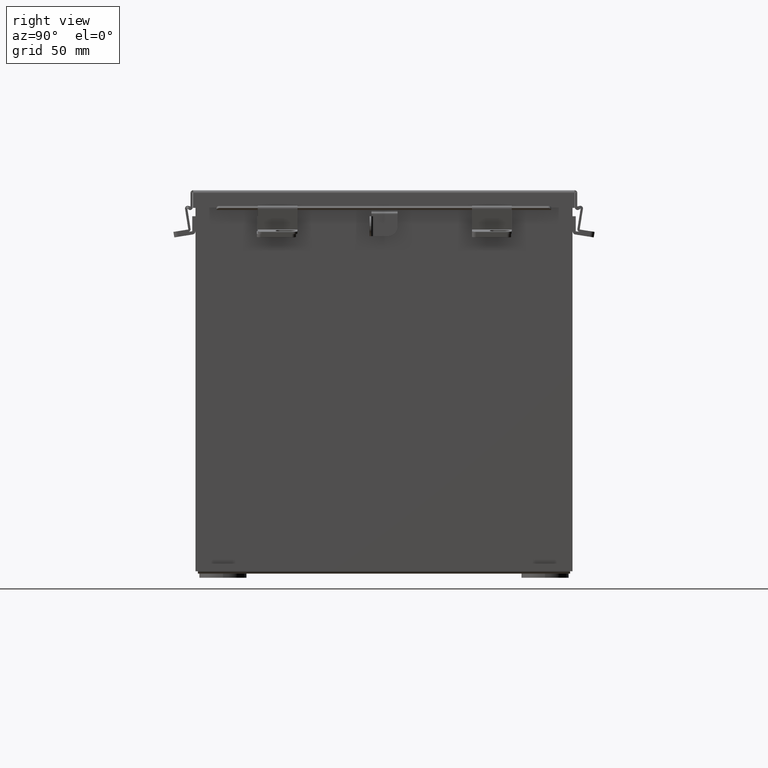
[diagram: clean part render]
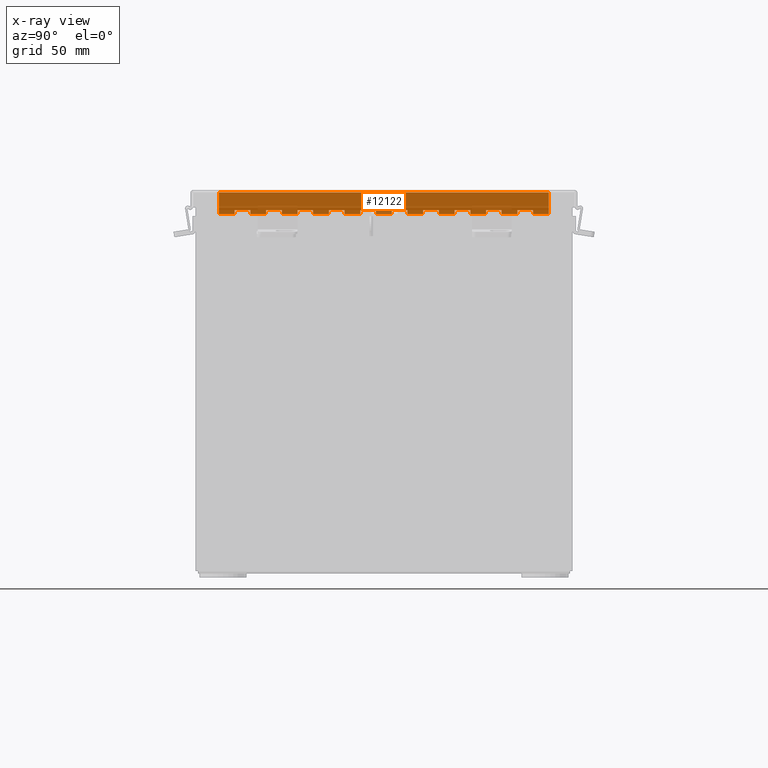
[diagram: x-ray — body ghosted, one internal face saturated and labeled with its STEP entity id]
A machine part, right view, then the same camera in x-ray: the body is ghosted and one INTERNAL B-rep face — a face not visible from any outside direction — is saturated and labeled: STEP entity #12122.
In plain terms, the highlighted planar face has unit normal (1, -0, 0).
Its self-contained STEP definition (entity closure, byte-faithful):
#7 = ORIENTED_EDGE ( 'NONE', *, *, #10625, .F. ) ;
#29 = ORIENTED_EDGE ( 'NONE', *, *, #496, .F. ) ;
#38 = LINE ( 'NONE', #11612, #2911 ) ;
#61 = LINE ( 'NONE', #15018, #9487 ) ;
#147 = DIRECTION ( 'NONE',  ( -1.365923996832131600E-016, 0.0000000000000000000, -1.000000000000000000 ) ) ;
#165 = LINE ( 'NONE', #618, #12516 ) ;
#167 = VERTEX_POINT ( 'NONE', #14804 ) ;
#232 = CARTESIAN_POINT ( 'NONE',  ( -0.5629999999999999400, 0.06249999999999993100, -5.500000000000000000 ) ) ;
#259 = EDGE_CURVE ( 'NONE', #10458, #820, #1041, .T. ) ;
#265 = CARTESIAN_POINT ( 'NONE',  ( -7.654042494670957500E-018, 0.06250000000000000000, -10.50000000000000000 ) ) ;
#334 = VECTOR ( 'NONE', #10139, 39.37007874015748100 ) ;
#442 = CARTESIAN_POINT ( 'NONE',  ( -0.6880000000000000600, 0.06249999999999991700, -6.000000000000000900 ) ) ;
#496 = EDGE_CURVE ( 'NONE', #12510, #5067, #4506, .T. ) ;
#618 = CARTESIAN_POINT ( 'NONE',  ( -0.8130000000000000600, 0.06249999999999989600, -8.500000000000000000 ) ) ;
#638 = CARTESIAN_POINT ( 'NONE',  ( -0.5629999999999999400, 0.06249999999999993100, -3.500000000000000000 ) ) ;
#657 = CARTESIAN_POINT ( 'NONE',  ( -0.6880000000000000600, 0.06249999999999991700, -4.000000000000000000 ) ) ;
#698 = EDGE_CURVE ( 'NONE', #5978, #11404, #12033, .T. ) ;
#739 = VECTOR ( 'NONE', #10719, 39.37007874015748100 ) ;
#750 = VERTEX_POINT ( 'NONE', #2449 ) ;
#785 = CARTESIAN_POINT ( 'NONE',  ( -0.8130000000000000600, 0.06249999999999989600, -10.00000000000000000 ) ) ;
#820 = VERTEX_POINT ( 'NONE', #6247 ) ;
#905 = CARTESIAN_POINT ( 'NONE',  ( -0.5629999999999999400, 0.06249999999999993100, -0.5000000000000000000 ) ) ;
#919 = ORIENTED_EDGE ( 'NONE', *, *, #14590, .F. ) ;
#926 = LINE ( 'NONE', #2932, #10375 ) ;
#977 = ORIENTED_EDGE ( 'NONE', *, *, #4618, .F. ) ;
#1041 = LINE ( 'NONE', #14978, #10494 ) ;
#1045 = CARTESIAN_POINT ( 'NONE',  ( -0.5630000000000000600, 0.06249999999999993100, -8.000000000000000000 ) ) ;
#1109 = VERTEX_POINT ( 'NONE', #9176 ) ;
#1185 = CARTESIAN_POINT ( 'NONE',  ( -0.8130000000000000600, 0.06249999999999989600, -2.000000000000000000 ) ) ;
#1323 = LINE ( 'NONE', #1583, #7885 ) ;
#1344 = LINE ( 'NONE', #3923, #13728 ) ;
#1394 = EDGE_CURVE ( 'NONE', #4169, #1571, #13000, .T. ) ;
#1432 = DIRECTION ( 'NONE',  ( 1.000000000000000000, 1.365923996832131400E-016, 0.0000000000000000000 ) ) ;
#1438 = VERTEX_POINT ( 'NONE', #8754 ) ;
#1443 = DIRECTION ( 'NONE',  ( -1.365923996832131600E-016, 0.0000000000000000000, -1.000000000000000000 ) ) ;
#1455 = DIRECTION ( 'NONE',  ( -1.365923996832131600E-016, 0.0000000000000000000, -1.000000000000000000 ) ) ;
#1475 = DIRECTION ( 'NONE',  ( -1.000000000000000000, -1.224646799147353200E-016, 0.0000000000000000000 ) ) ;
#1551 = CARTESIAN_POINT ( 'NONE',  ( -0.5630000000000000600, 0.06249999999999993100, -2.999999999999999600 ) ) ;
#1571 = VERTEX_POINT ( 'NONE', #7824 ) ;
#1583 = CARTESIAN_POINT ( 'NONE',  ( -0.8130000000000000600, 0.06249999999999989600, -5.500000000000000000 ) ) ;
#1681 = ORIENTED_EDGE ( 'NONE', *, *, #5587, .T. ) ;
#1682 = VECTOR ( 'NONE', #12916, 39.37007874015748100 ) ;
#1711 = ORIENTED_EDGE ( 'NONE', *, *, #8497, .F. ) ;
#1750 = CARTESIAN_POINT ( 'NONE',  ( -0.5630000000000000600, 0.06249999999999993100, -7.000000000000000000 ) ) ;
#1816 = DIRECTION ( 'NONE',  ( 1.000000000000000000, 1.365923996832131400E-016, 0.0000000000000000000 ) ) ;
#1827 = VECTOR ( 'NONE', #12744, 39.37007874015748100 ) ;
#1855 = DIRECTION ( 'NONE',  ( 1.000000000000000000, 1.365923996832131400E-016, 0.0000000000000000000 ) ) ;
#1870 = DIRECTION ( 'NONE',  ( -1.365923996832131600E-016, 0.0000000000000000000, -1.000000000000000000 ) ) ;
#1957 = ORIENTED_EDGE ( 'NONE', *, *, #8071, .F. ) ;
#2001 = VERTEX_POINT ( 'NONE', #3565 ) ;
#2040 = EDGE_CURVE ( 'NONE', #6786, #167, #14924, .T. ) ;
#2061 = LINE ( 'NONE', #11684, #1682 ) ;
#2099 = CARTESIAN_POINT ( 'NONE',  ( -0.8130000000000000600, 0.06249999999999989600, -6.000000000000000900 ) ) ;
#2151 = DIRECTION ( 'NONE',  ( -1.365923996832131600E-016, 0.0000000000000000000, -1.000000000000000000 ) ) ;
#2203 = LINE ( 'NONE', #11453, #8378 ) ;
#2236 = VERTEX_POINT ( 'NONE', #3979 ) ;
#2396 = CARTESIAN_POINT ( 'NONE',  ( -0.6880000000000000600, 0.06249999999999991700, -9.000000000000000000 ) ) ;
#2449 = CARTESIAN_POINT ( 'NONE',  ( -0.5629999999999999400, 0.06249999999999993100, -10.50000000000000000 ) ) ;
#2571 = LINE ( 'NONE', #7208, #12426 ) ;
#2650 = CARTESIAN_POINT ( 'NONE',  ( -7.654042494670957500E-018, 0.06250000000000000000, -10.50000000000000000 ) ) ;
#2684 = VERTEX_POINT ( 'NONE', #12228 ) ;
#2773 = VECTOR ( 'NONE', #14173, 39.37007874015748100 ) ;
#2810 = DIRECTION ( 'NONE',  ( 1.000000000000000000, 1.365923996832131400E-016, 0.0000000000000000000 ) ) ;
#2848 = CARTESIAN_POINT ( 'NONE',  ( -0.8130000000000000600, 0.06249999999999989600, -4.500000000000000000 ) ) ;
#2854 = LINE ( 'NONE', #8592, #15577 ) ;
#2884 = CARTESIAN_POINT ( 'NONE',  ( -0.8130000000000000600, 0.06249999999999989600, -7.499999999999999100 ) ) ;
#2911 = VECTOR ( 'NONE', #2952, 39.37007874015748100 ) ;
#2932 = CARTESIAN_POINT ( 'NONE',  ( -0.5629999999999999400, 0.06249999999999993100, -2.500000000000000000 ) ) ;
#2952 = DIRECTION ( 'NONE',  ( -1.000000000000000000, -1.365923996832131600E-016, -0.0000000000000000000 ) ) ;
#3061 = VERTEX_POINT ( 'NONE', #657 ) ;
#3093 = ORIENTED_EDGE ( 'NONE', *, *, #9734, .T. ) ;
#3300 = EDGE_CURVE ( 'NONE', #4169, #2236, #8597, .T. ) ;
#3303 = ORIENTED_EDGE ( 'NONE', *, *, #13862, .F. ) ;
#3334 = VERTEX_POINT ( 'NONE', #8516 ) ;
#3362 = LINE ( 'NONE', #232, #3769 ) ;
#3372 = CARTESIAN_POINT ( 'NONE',  ( -0.8130000000000000600, 0.06249999999999989600, -3.500000000000000000 ) ) ;
#3505 = EDGE_CURVE ( 'NONE', #5383, #5193, #3362, .T. ) ;
#3555 = CARTESIAN_POINT ( 'NONE',  ( -0.6880000000000000600, 0.06249999999999991700, -10.50000000000000000 ) ) ;
#3565 = CARTESIAN_POINT ( 'NONE',  ( -0.5629999999999999400, 0.06249999999999993100, -8.500000000000000000 ) ) ;
#3604 = VERTEX_POINT ( 'NONE', #9881 ) ;
#3605 = VECTOR ( 'NONE', #15875, 39.37007874015748100 ) ;
#3702 = CARTESIAN_POINT ( 'NONE',  ( -0.6880000000000000600, 0.06249999999999991700, -0.5000000000000000000 ) ) ;
#3769 = VECTOR ( 'NONE', #1455, 39.37007874015748100 ) ;
#3836 = VERTEX_POINT ( 'NONE', #15150 ) ;
#3891 = DIRECTION ( 'NONE',  ( -1.000000000000000000, -1.224646799147353200E-016, 0.0000000000000000000 ) ) ;
#3923 = CARTESIAN_POINT ( 'NONE',  ( -0.5629999999999999400, 0.06249999999999993100, -6.499999999999999100 ) ) ;
#3937 = ORIENTED_EDGE ( 'NONE', *, *, #3300, .F. ) ;
#3979 = CARTESIAN_POINT ( 'NONE',  ( -0.5629999999999999400, 0.06249999999999993100, -0.5000000000000000000 ) ) ;
#3986 = VECTOR ( 'NONE', #3891, 39.37007874015748100 ) ;
#4023 = LINE ( 'NONE', #7311, #9787 ) ;
#4086 = LINE ( 'NONE', #2848, #13553 ) ;
#4149 = ORIENTED_EDGE ( 'NONE', *, *, #10550, .F. ) ;
#4169 = VERTEX_POINT ( 'NONE', #3702 ) ;
#4222 = VECTOR ( 'NONE', #13092, 39.37007874015748100 ) ;
#4226 = VERTEX_POINT ( 'NONE', #12035 ) ;
#4263 = ORIENTED_EDGE ( 'NONE', *, *, #15093, .F. ) ;
#4270 = CARTESIAN_POINT ( 'NONE',  ( -7.654042494670957500E-018, 0.06250000000000000000, -10.50000000000000000 ) ) ;
#4274 = LINE ( 'NONE', #1185, #10837 ) ;
#4278 = ORIENTED_EDGE ( 'NONE', *, *, #3505, .F. ) ;
#4296 = ORIENTED_EDGE ( 'NONE', *, *, #15628, .F. ) ;
#4370 = LINE ( 'NONE', #8908, #334 ) ;
#4444 = DIRECTION ( 'NONE',  ( 0.0000000000000000000, 0.0000000000000000000, 1.000000000000000000 ) ) ;
#4506 = LINE ( 'NONE', #2884, #13987 ) ;
#4569 = EDGE_CURVE ( 'NONE', #6271, #12025, #2203, .T. ) ;
#4618 = EDGE_CURVE ( 'NONE', #1109, #11404, #14552, .T. ) ;
#4638 = VERTEX_POINT ( 'NONE', #442 ) ;
#4669 = VERTEX_POINT ( 'NONE', #6643 ) ;
#4695 = VECTOR ( 'NONE', #1443, 39.37007874015748100 ) ;
#4722 = VERTEX_POINT ( 'NONE', #9203 ) ;
#4733 = DIRECTION ( 'NONE',  ( 1.000000000000000000, 1.365923996832131400E-016, 0.0000000000000000000 ) ) ;
#4738 = VECTOR ( 'NONE', #2151, 39.37007874015748100 ) ;
#4858 = EDGE_CURVE ( 'NONE', #2684, #7756, #5665, .T. ) ;
#4940 = VERTEX_POINT ( 'NONE', #6068 ) ;
#5003 = LINE ( 'NONE', #12672, #11177 ) ;
#5067 = VERTEX_POINT ( 'NONE', #9957 ) ;
#5083 = VECTOR ( 'NONE', #14768, 39.37007874015748100 ) ;
#5141 = EDGE_CURVE ( 'NONE', #6897, #13730, #7986, .T. ) ;
#5145 = LINE ( 'NONE', #905, #4738 ) ;
#5188 = VECTOR ( 'NONE', #9406, 39.37007874015748100 ) ;
#5193 = VERTEX_POINT ( 'NONE', #10225 ) ;
#5265 = DIRECTION ( 'NONE',  ( 0.0000000000000000000, 0.0000000000000000000, 1.000000000000000000 ) ) ;
#5313 = EDGE_CURVE ( 'NONE', #4940, #12789, #8943, .T. ) ;
#5320 = CARTESIAN_POINT ( 'NONE',  ( -0.5630000000000000600, 0.06249999999999993100, -9.000000000000000000 ) ) ;
#5383 = VERTEX_POINT ( 'NONE', #9305 ) ;
#5396 = CARTESIAN_POINT ( 'NONE',  ( -0.6880000000000000600, 0.06249999999999991700, -4.500000000000000000 ) ) ;
#5519 = ORIENTED_EDGE ( 'NONE', *, *, #2040, .F. ) ;
#5524 = VECTOR ( 'NONE', #4444, 39.37007874015748100 ) ;
#5587 = EDGE_CURVE ( 'NONE', #6271, #4638, #2571, .T. ) ;
#5665 = LINE ( 'NONE', #8184, #8178 ) ;
#5776 = ORIENTED_EDGE ( 'NONE', *, *, #12088, .F. ) ;
#5978 = VERTEX_POINT ( 'NONE', #12276 ) ;
#5983 = LINE ( 'NONE', #11821, #8888 ) ;
#6014 = CARTESIAN_POINT ( 'NONE',  ( -0.8130000000000000600, 0.06249999999999989600, -9.500000000000000000 ) ) ;
#6045 = EDGE_CURVE ( 'NONE', #8117, #13759, #61, .T. ) ;
#6068 = CARTESIAN_POINT ( 'NONE',  ( -0.6880000000000000600, 0.06249999999999991700, -3.500000000000000000 ) ) ;
#6139 = CARTESIAN_POINT ( 'NONE',  ( -7.654042494670957500E-018, 0.06250000000000000000, -10.50000000000000000 ) ) ;
#6147 = ORIENTED_EDGE ( 'NONE', *, *, #259, .F. ) ;
#6161 = CARTESIAN_POINT ( 'NONE',  ( -0.6880000000000000600, 0.06249999999999991700, -10.50000000000000000 ) ) ;
#6223 = DIRECTION ( 'NONE',  ( 0.0000000000000000000, 0.0000000000000000000, 1.000000000000000000 ) ) ;
#6247 = CARTESIAN_POINT ( 'NONE',  ( -0.5630000000000000600, 0.06249999999999993100, -5.000000000000000000 ) ) ;
#6271 = VERTEX_POINT ( 'NONE', #13149 ) ;
#6410 = PLANE ( 'NONE',  #11731 ) ;
#6490 = DIRECTION ( 'NONE',  ( -1.000000000000000000, -1.224646799147353200E-016, 0.0000000000000000000 ) ) ;
#6540 = DIRECTION ( 'NONE',  ( 1.000000000000000000, 1.365923996832131400E-016, 0.0000000000000000000 ) ) ;
#6601 = ORIENTED_EDGE ( 'NONE', *, *, #13177, .F. ) ;
#6643 = CARTESIAN_POINT ( 'NONE',  ( -0.6880000000000000600, 0.06249999999999991700, -7.000000000000000000 ) ) ;
#6665 = ORIENTED_EDGE ( 'NONE', *, *, #14535, .F. ) ;
#6786 = VERTEX_POINT ( 'NONE', #4270 ) ;
#6897 = VERTEX_POINT ( 'NONE', #11875 ) ;
#6918 = LINE ( 'NONE', #6014, #3605 ) ;
#6991 = VECTOR ( 'NONE', #11571, 39.37007874015748100 ) ;
#7140 = VERTEX_POINT ( 'NONE', #8566 ) ;
#7174 = CARTESIAN_POINT ( 'NONE',  ( -0.6880000000000000600, 0.06249999999999991700, -5.000000000000000000 ) ) ;
#7204 = LINE ( 'NONE', #10382, #13391 ) ;
#7208 = CARTESIAN_POINT ( 'NONE',  ( -0.6880000000000000600, 0.06249999999999991700, -10.50000000000000000 ) ) ;
#7263 = ORIENTED_EDGE ( 'NONE', *, *, #4858, .T. ) ;
#7265 = LINE ( 'NONE', #2650, #3986 ) ;
#7304 = ORIENTED_EDGE ( 'NONE', *, *, #11596, .F. ) ;
#7311 = CARTESIAN_POINT ( 'NONE',  ( -0.8130000000000000600, 0.06249999999999989600, -1.499999999999999800 ) ) ;
#7348 = ORIENTED_EDGE ( 'NONE', *, *, #10135, .F. ) ;
#7379 = EDGE_CURVE ( 'NONE', #2684, #5383, #1323, .T. ) ;
#7391 = ORIENTED_EDGE ( 'NONE', *, *, #7670, .F. ) ;
#7423 = CARTESIAN_POINT ( 'NONE',  ( -0.5629999999999999400, 0.06249999999999993100, -6.499999999999999100 ) ) ;
#7443 = ORIENTED_EDGE ( 'NONE', *, *, #11284, .F. ) ;
#7464 = VERTEX_POINT ( 'NONE', #5396 ) ;
#7473 = DIRECTION ( 'NONE',  ( 0.0000000000000000000, 0.0000000000000000000, 1.000000000000000000 ) ) ;
#7522 = LINE ( 'NONE', #8124, #4222 ) ;
#7535 = CARTESIAN_POINT ( 'NONE',  ( -7.654042494670957500E-018, 0.06250000000000000000, 0.0000000000000000000 ) ) ;
#7627 = ORIENTED_EDGE ( 'NONE', *, *, #698, .T. ) ;
#7645 = DIRECTION ( 'NONE',  ( -1.000000000000000000, -1.365923996832131600E-016, -0.0000000000000000000 ) ) ;
#7658 = CARTESIAN_POINT ( 'NONE',  ( -0.5629999999999999400, 0.06249999999999993100, -9.500000000000000000 ) ) ;
#7670 = EDGE_CURVE ( 'NONE', #5193, #4638, #13880, .T. ) ;
#7756 = VERTEX_POINT ( 'NONE', #7174 ) ;
#7824 = CARTESIAN_POINT ( 'NONE',  ( -0.6880000000000000600, 0.06249999999999991700, 0.0000000000000000000 ) ) ;
#7885 = VECTOR ( 'NONE', #2810, 39.37007874015748100 ) ;
#7986 = LINE ( 'NONE', #7658, #4695 ) ;
#8071 = EDGE_CURVE ( 'NONE', #3604, #3061, #5003, .T. ) ;
#8117 = VERTEX_POINT ( 'NONE', #5320 ) ;
#8124 = CARTESIAN_POINT ( 'NONE',  ( -0.5629999999999999400, 0.06249999999999993100, -8.500000000000000000 ) ) ;
#8167 = DIRECTION ( 'NONE',  ( -1.000000000000000000, -1.365923996832131600E-016, -0.0000000000000000000 ) ) ;
#8178 = VECTOR ( 'NONE', #10668, 39.37007874015748100 ) ;
#8184 = CARTESIAN_POINT ( 'NONE',  ( -0.6880000000000000600, 0.06249999999999991700, -10.50000000000000000 ) ) ;
#8220 = LINE ( 'NONE', #8818, #11528 ) ;
#8260 = CARTESIAN_POINT ( 'NONE',  ( -0.6880000000000000600, 0.06249999999999991700, -1.000000000000000000 ) ) ;
#8285 = ORIENTED_EDGE ( 'NONE', *, *, #7379, .F. ) ;
#8320 = EDGE_CURVE ( 'NONE', #12649, #13759, #15024, .T. ) ;
#8364 = VECTOR ( 'NONE', #14588, 39.37007874015748100 ) ;
#8378 = VECTOR ( 'NONE', #6540, 39.37007874015748100 ) ;
#8465 = EDGE_CURVE ( 'NONE', #12649, #6897, #6918, .T. ) ;
#8497 = EDGE_CURVE ( 'NONE', #5978, #4722, #4023, .T. ) ;
#8516 = CARTESIAN_POINT ( 'NONE',  ( -0.5629999999999999400, 0.06249999999999993100, -2.500000000000000000 ) ) ;
#8539 = EDGE_CURVE ( 'NONE', #14062, #4669, #2854, .T. ) ;
#8566 = CARTESIAN_POINT ( 'NONE',  ( -0.5630000000000000600, 0.06249999999999993100, -2.000000000000000000 ) ) ;
#8570 = DIRECTION ( 'NONE',  ( -1.000000000000000000, -1.365923996832131600E-016, -0.0000000000000000000 ) ) ;
#8592 = CARTESIAN_POINT ( 'NONE',  ( -0.8130000000000000600, 0.06249999999999989600, -7.000000000000000000 ) ) ;
#8597 = LINE ( 'NONE', #13396, #11891 ) ;
#8621 = VERTEX_POINT ( 'NONE', #12449 ) ;
#8625 = LINE ( 'NONE', #11064, #14414 ) ;
#8630 = DIRECTION ( 'NONE',  ( -1.000000000000000000, -1.365923996832131600E-016, -0.0000000000000000000 ) ) ;
#8660 = VECTOR ( 'NONE', #1870, 39.37007874015748100 ) ;
#8754 = CARTESIAN_POINT ( 'NONE',  ( -0.6880000000000000600, 0.06249999999999991700, -2.500000000000000000 ) ) ;
#8792 = VERTEX_POINT ( 'NONE', #1045 ) ;
#8818 = CARTESIAN_POINT ( 'NONE',  ( -0.8130000000000000600, 0.06249999999999989600, -2.500000000000000000 ) ) ;
#8876 = DIRECTION ( 'NONE',  ( -1.224646799147353200E-016, 1.000000000000000000, 0.0000000000000000000 ) ) ;
#8888 = VECTOR ( 'NONE', #15505, 39.37007874015748100 ) ;
#8908 = CARTESIAN_POINT ( 'NONE',  ( -0.5629999999999999400, 0.06249999999999993100, -1.499999999999999800 ) ) ;
#8936 = ORIENTED_EDGE ( 'NONE', *, *, #8320, .T. ) ;
#8943 = LINE ( 'NONE', #9189, #2773 ) ;
#9039 = CARTESIAN_POINT ( 'NONE',  ( -0.5629999999999999400, 0.06249999999999993100, -4.500000000000000000 ) ) ;
#9045 = LINE ( 'NONE', #638, #8660 ) ;
#9051 = VECTOR ( 'NONE', #10800, 39.37007874015748100 ) ;
#9092 = EDGE_CURVE ( 'NONE', #5067, #8792, #2061, .T. ) ;
#9143 = DIRECTION ( 'NONE',  ( -1.000000000000000000, -1.365923996832131600E-016, -0.0000000000000000000 ) ) ;
#9176 = CARTESIAN_POINT ( 'NONE',  ( -0.5630000000000000600, 0.06249999999999993100, -1.000000000000000000 ) ) ;
#9182 = CARTESIAN_POINT ( 'NONE',  ( -0.6880000000000000600, 0.06249999999999991700, -8.500000000000000000 ) ) ;
#9189 = CARTESIAN_POINT ( 'NONE',  ( -0.6880000000000000600, 0.06249999999999991700, -10.50000000000000000 ) ) ;
#9196 = LINE ( 'NONE', #11853, #5524 ) ;
#9203 = CARTESIAN_POINT ( 'NONE',  ( -0.5629999999999999400, 0.06249999999999993100, -1.499999999999999800 ) ) ;
#9305 = CARTESIAN_POINT ( 'NONE',  ( -0.5629999999999999400, 0.06249999999999993100, -5.500000000000000000 ) ) ;
#9406 = DIRECTION ( 'NONE',  ( 0.0000000000000000000, 0.0000000000000000000, 1.000000000000000000 ) ) ;
#9439 = EDGE_CURVE ( 'NONE', #6786, #750, #7265, .T. ) ;
#9487 = VECTOR ( 'NONE', #7645, 39.37007874015748100 ) ;
#9498 = EDGE_CURVE ( 'NONE', #4722, #7140, #4370, .T. ) ;
#9686 = VECTOR ( 'NONE', #6223, 39.37007874015748100 ) ;
#9734 = EDGE_CURVE ( 'NONE', #12510, #4669, #5983, .T. ) ;
#9787 = VECTOR ( 'NONE', #14696, 39.37007874015748100 ) ;
#9837 = DIRECTION ( 'NONE',  ( -1.000000000000000000, -1.365923996832131600E-016, -0.0000000000000000000 ) ) ;
#9881 = CARTESIAN_POINT ( 'NONE',  ( -0.5630000000000000600, 0.06249999999999993100, -4.000000000000000000 ) ) ;
#9957 = CARTESIAN_POINT ( 'NONE',  ( -0.5629999999999999400, 0.06249999999999993100, -7.499999999999999100 ) ) ;
#9980 = ORIENTED_EDGE ( 'NONE', *, *, #5313, .T. ) ;
#10023 = ORIENTED_EDGE ( 'NONE', *, *, #11828, .T. ) ;
#10072 = DIRECTION ( 'NONE',  ( -1.365923996832131600E-016, 0.0000000000000000000, -1.000000000000000000 ) ) ;
#10135 = EDGE_CURVE ( 'NONE', #12025, #14062, #1344, .T. ) ;
#10139 = DIRECTION ( 'NONE',  ( -1.365923996832131600E-016, 0.0000000000000000000, -1.000000000000000000 ) ) ;
#10225 = CARTESIAN_POINT ( 'NONE',  ( -0.5630000000000000600, 0.06249999999999993100, -6.000000000000000900 ) ) ;
#10229 = DIRECTION ( 'NONE',  ( -1.000000000000000000, -1.365923996832131600E-016, -0.0000000000000000000 ) ) ;
#10238 = DIRECTION ( 'NONE',  ( 1.000000000000000000, 1.365923996832131400E-016, 0.0000000000000000000 ) ) ;
#10264 = CARTESIAN_POINT ( 'NONE',  ( -0.6880000000000000600, 0.06249999999999991700, -8.000000000000000000 ) ) ;
#10310 = DIRECTION ( 'NONE',  ( -1.365923996832131600E-016, 0.0000000000000000000, -1.000000000000000000 ) ) ;
#10375 = VECTOR ( 'NONE', #10310, 39.37007874015748100 ) ;
#10382 = CARTESIAN_POINT ( 'NONE',  ( -0.8130000000000000600, 0.06249999999999989600, -2.999999999999999600 ) ) ;
#10458 = VERTEX_POINT ( 'NONE', #9039 ) ;
#10494 = VECTOR ( 'NONE', #147, 39.37007874015748100 ) ;
#10550 = EDGE_CURVE ( 'NONE', #4226, #3604, #9045, .T. ) ;
#10625 = EDGE_CURVE ( 'NONE', #2001, #8117, #7522, .T. ) ;
#10668 = DIRECTION ( 'NONE',  ( 0.0000000000000000000, 0.0000000000000000000, 1.000000000000000000 ) ) ;
#10719 = DIRECTION ( 'NONE',  ( -1.000000000000000000, -1.365923996832131600E-016, -0.0000000000000000000 ) ) ;
#10800 = DIRECTION ( 'NONE',  ( 1.000000000000000000, 1.365923996832131400E-016, 0.0000000000000000000 ) ) ;
#10837 = VECTOR ( 'NONE', #8570, 39.37007874015748100 ) ;
#10849 = VECTOR ( 'NONE', #12491, 39.37007874015748100 ) ;
#11064 = CARTESIAN_POINT ( 'NONE',  ( -0.8130000000000000600, 0.06249999999999989600, -8.000000000000000000 ) ) ;
#11099 = EDGE_CURVE ( 'NONE', #14965, #11154, #14824, .T. ) ;
#11144 = ORIENTED_EDGE ( 'NONE', *, *, #4569, .F. ) ;
#11154 = VERTEX_POINT ( 'NONE', #10264 ) ;
#11177 = VECTOR ( 'NONE', #10229, 39.37007874015748100 ) ;
#11201 = ORIENTED_EDGE ( 'NONE', *, *, #12865, .T. ) ;
#11213 = EDGE_CURVE ( 'NONE', #3334, #14856, #926, .T. ) ;
#11242 = CARTESIAN_POINT ( 'NONE',  ( -0.6880000000000000600, 0.06249999999999991700, -2.999999999999999600 ) ) ;
#11244 = ORIENTED_EDGE ( 'NONE', *, *, #1394, .T. ) ;
#11254 = VECTOR ( 'NONE', #7473, 39.37007874015748100 ) ;
#11284 = EDGE_CURVE ( 'NONE', #14965, #2001, #165, .T. ) ;
#11402 = CARTESIAN_POINT ( 'NONE',  ( -7.654042494670957500E-018, 0.06250000000000000000, -10.50000000000000000 ) ) ;
#11404 = VERTEX_POINT ( 'NONE', #8260 ) ;
#11425 = CARTESIAN_POINT ( 'NONE',  ( -0.6880000000000000600, 0.06249999999999991700, -10.50000000000000000 ) ) ;
#11453 = CARTESIAN_POINT ( 'NONE',  ( -0.8130000000000000600, 0.06249999999999989600, -6.499999999999999100 ) ) ;
#11503 = CARTESIAN_POINT ( 'NONE',  ( -0.8130000000000000600, 0.06249999999999989600, -1.000000000000000000 ) ) ;
#11528 = VECTOR ( 'NONE', #1432, 39.37007874015748100 ) ;
#11571 = DIRECTION ( 'NONE',  ( 0.0000000000000000000, 0.0000000000000000000, 1.000000000000000000 ) ) ;
#11574 = CARTESIAN_POINT ( 'NONE',  ( -0.6880000000000000600, 0.06249999999999991700, -10.50000000000000000 ) ) ;
#11596 = EDGE_CURVE ( 'NONE', #8792, #11154, #8625, .T. ) ;
#11609 = ORIENTED_EDGE ( 'NONE', *, *, #14059, .T. ) ;
#11612 = CARTESIAN_POINT ( 'NONE',  ( -0.8130000000000000600, 0.06249999999999989600, -5.000000000000000000 ) ) ;
#11650 = LINE ( 'NONE', #14857, #11254 ) ;
#11684 = CARTESIAN_POINT ( 'NONE',  ( -0.5629999999999999400, 0.06249999999999993100, -7.499999999999999100 ) ) ;
#11719 = ORIENTED_EDGE ( 'NONE', *, *, #14267, .F. ) ;
#11731 = AXIS2_PLACEMENT_3D ( 'NONE', #265, #8876, #1475 ) ;
#11821 = CARTESIAN_POINT ( 'NONE',  ( -0.6880000000000000600, 0.06249999999999991700, -10.50000000000000000 ) ) ;
#11828 = EDGE_CURVE ( 'NONE', #1438, #3836, #9196, .T. ) ;
#11853 = CARTESIAN_POINT ( 'NONE',  ( -0.6880000000000000600, 0.06249999999999991700, -10.50000000000000000 ) ) ;
#11875 = CARTESIAN_POINT ( 'NONE',  ( -0.5629999999999999400, 0.06249999999999993100, -9.500000000000000000 ) ) ;
#11891 = VECTOR ( 'NONE', #4733, 39.37007874015748100 ) ;
#11933 = VECTOR ( 'NONE', #5265, 39.37007874015748100 ) ;
#12025 = VERTEX_POINT ( 'NONE', #7423 ) ;
#12033 = LINE ( 'NONE', #3555, #8364 ) ;
#12035 = CARTESIAN_POINT ( 'NONE',  ( -0.5629999999999999400, 0.06249999999999993100, -3.500000000000000000 ) ) ;
#12088 = EDGE_CURVE ( 'NONE', #1438, #3334, #8220, .T. ) ;
#12122 = ADVANCED_FACE ( 'NONE', ( #13653 ), #6410, .T. ) ;
#12217 = ORIENTED_EDGE ( 'NONE', *, *, #9439, .T. ) ;
#12228 = CARTESIAN_POINT ( 'NONE',  ( -0.6880000000000000600, 0.06249999999999991700, -5.500000000000000000 ) ) ;
#12276 = CARTESIAN_POINT ( 'NONE',  ( -0.6880000000000000600, 0.06249999999999991700, -1.499999999999999800 ) ) ;
#12297 = LINE ( 'NONE', #11402, #15169 ) ;
#12357 = LINE ( 'NONE', #3372, #9051 ) ;
#12426 = VECTOR ( 'NONE', #14583, 39.37007874015748100 ) ;
#12449 = CARTESIAN_POINT ( 'NONE',  ( -0.6880000000000000600, 0.06249999999999991700, -10.00000000000000000 ) ) ;
#12491 = DIRECTION ( 'NONE',  ( -1.000000000000000000, -1.224646799147353200E-016, 0.0000000000000000000 ) ) ;
#12510 = VERTEX_POINT ( 'NONE', #15698 ) ;
#12516 = VECTOR ( 'NONE', #1855, 39.37007874015748100 ) ;
#12649 = VERTEX_POINT ( 'NONE', #15957 ) ;
#12659 = ORIENTED_EDGE ( 'NONE', *, *, #9092, .F. ) ;
#12672 = CARTESIAN_POINT ( 'NONE',  ( -0.8130000000000000600, 0.06249999999999989600, -4.000000000000000000 ) ) ;
#12694 = ORIENTED_EDGE ( 'NONE', *, *, #8465, .F. ) ;
#12744 = DIRECTION ( 'NONE',  ( -1.000000000000000000, -1.365923996832131600E-016, -0.0000000000000000000 ) ) ;
#12760 = VECTOR ( 'NONE', #8167, 39.37007874015748100 ) ;
#12789 = VERTEX_POINT ( 'NONE', #11242 ) ;
#12865 = EDGE_CURVE ( 'NONE', #750, #15429, #12297, .T. ) ;
#12916 = DIRECTION ( 'NONE',  ( -1.365923996832131600E-016, 0.0000000000000000000, -1.000000000000000000 ) ) ;
#13000 = LINE ( 'NONE', #6161, #9686 ) ;
#13092 = DIRECTION ( 'NONE',  ( -1.365923996832131600E-016, 0.0000000000000000000, -1.000000000000000000 ) ) ;
#13145 = LINE ( 'NONE', #785, #12760 ) ;
#13149 = CARTESIAN_POINT ( 'NONE',  ( -0.6880000000000000600, 0.06249999999999991700, -6.499999999999999100 ) ) ;
#13177 = EDGE_CURVE ( 'NONE', #2236, #1109, #5145, .T. ) ;
#13263 = ORIENTED_EDGE ( 'NONE', *, *, #13388, .F. ) ;
#13388 = EDGE_CURVE ( 'NONE', #14856, #12789, #7204, .T. ) ;
#13391 = VECTOR ( 'NONE', #9143, 39.37007874015748100 ) ;
#13396 = CARTESIAN_POINT ( 'NONE',  ( -0.8130000000000000600, 0.06249999999999989600, -0.5000000000000000000 ) ) ;
#13553 = VECTOR ( 'NONE', #10238, 39.37007874015748100 ) ;
#13574 = LINE ( 'NONE', #15266, #6991 ) ;
#13653 = FACE_OUTER_BOUND ( 'NONE', #15217, .T. ) ;
#13728 = VECTOR ( 'NONE', #10072, 39.37007874015748100 ) ;
#13730 = VERTEX_POINT ( 'NONE', #14688 ) ;
#13759 = VERTEX_POINT ( 'NONE', #2396 ) ;
#13778 = LINE ( 'NONE', #7535, #10849 ) ;
#13808 = EDGE_CURVE ( 'NONE', #15429, #8621, #11650, .T. ) ;
#13862 = EDGE_CURVE ( 'NONE', #167, #1571, #13778, .T. ) ;
#13880 = LINE ( 'NONE', #2099, #739 ) ;
#13987 = VECTOR ( 'NONE', #1816, 39.37007874015748100 ) ;
#14059 = EDGE_CURVE ( 'NONE', #7464, #3061, #13574, .T. ) ;
#14062 = VERTEX_POINT ( 'NONE', #1750 ) ;
#14173 = DIRECTION ( 'NONE',  ( 0.0000000000000000000, 0.0000000000000000000, 1.000000000000000000 ) ) ;
#14267 = EDGE_CURVE ( 'NONE', #7140, #3836, #4274, .T. ) ;
#14363 = ORIENTED_EDGE ( 'NONE', *, *, #8539, .F. ) ;
#14414 = VECTOR ( 'NONE', #8630, 39.37007874015748100 ) ;
#14535 = EDGE_CURVE ( 'NONE', #7464, #10458, #4086, .T. ) ;
#14549 = ORIENTED_EDGE ( 'NONE', *, *, #9498, .F. ) ;
#14552 = LINE ( 'NONE', #11503, #1827 ) ;
#14583 = DIRECTION ( 'NONE',  ( 0.0000000000000000000, 0.0000000000000000000, 1.000000000000000000 ) ) ;
#14588 = DIRECTION ( 'NONE',  ( 0.0000000000000000000, 0.0000000000000000000, 1.000000000000000000 ) ) ;
#14590 = EDGE_CURVE ( 'NONE', #820, #7756, #38, .T. ) ;
#14688 = CARTESIAN_POINT ( 'NONE',  ( -0.5630000000000000600, 0.06249999999999993100, -10.00000000000000000 ) ) ;
#14696 = DIRECTION ( 'NONE',  ( 1.000000000000000000, 1.365923996832131400E-016, 0.0000000000000000000 ) ) ;
#14768 = DIRECTION ( 'NONE',  ( 0.0000000000000000000, 0.0000000000000000000, 1.000000000000000000 ) ) ;
#14804 = CARTESIAN_POINT ( 'NONE',  ( -7.654042494670957500E-018, 0.06250000000000000000, 0.0000000000000000000 ) ) ;
#14824 = LINE ( 'NONE', #11425, #11933 ) ;
#14856 = VERTEX_POINT ( 'NONE', #1551 ) ;
#14857 = CARTESIAN_POINT ( 'NONE',  ( -0.6880000000000000600, 0.06249999999999991700, -10.50000000000000000 ) ) ;
#14924 = LINE ( 'NONE', #6139, #5083 ) ;
#14965 = VERTEX_POINT ( 'NONE', #9182 ) ;
#14978 = CARTESIAN_POINT ( 'NONE',  ( -0.5629999999999999400, 0.06249999999999993100, -4.500000000000000000 ) ) ;
#15018 = CARTESIAN_POINT ( 'NONE',  ( -0.8130000000000000600, 0.06249999999999989600, -9.000000000000000000 ) ) ;
#15024 = LINE ( 'NONE', #15542, #5188 ) ;
#15093 = EDGE_CURVE ( 'NONE', #13730, #8621, #13145, .T. ) ;
#15150 = CARTESIAN_POINT ( 'NONE',  ( -0.6880000000000000600, 0.06249999999999991700, -2.000000000000000000 ) ) ;
#15169 = VECTOR ( 'NONE', #6490, 39.37007874015748100 ) ;
#15193 = ORIENTED_EDGE ( 'NONE', *, *, #11099, .T. ) ;
#15217 = EDGE_LOOP ( 'NONE', ( #4263, #15955, #12694, #8936, #15267, #7, #7443, #15193, #7304, #12659, #29, #3093, #14363, #7348, #11144, #1681, #7391, #4278, #8285, #7263, #919, #6147, #6665, #11609, #1957, #4149, #4296, #9980, #13263, #15669, #5776, #10023, #11719, #14549, #1711, #7627, #977, #6601, #3937, #11244, #3303, #5519, #12217, #11201, #15409 ) ) ;
#15266 = CARTESIAN_POINT ( 'NONE',  ( -0.6880000000000000600, 0.06249999999999991700, -10.50000000000000000 ) ) ;
#15267 = ORIENTED_EDGE ( 'NONE', *, *, #6045, .F. ) ;
#15409 = ORIENTED_EDGE ( 'NONE', *, *, #13808, .T. ) ;
#15429 = VERTEX_POINT ( 'NONE', #11574 ) ;
#15505 = DIRECTION ( 'NONE',  ( 0.0000000000000000000, 0.0000000000000000000, 1.000000000000000000 ) ) ;
#15542 = CARTESIAN_POINT ( 'NONE',  ( -0.6880000000000000600, 0.06249999999999991700, -10.50000000000000000 ) ) ;
#15577 = VECTOR ( 'NONE', #9837, 39.37007874015748100 ) ;
#15628 = EDGE_CURVE ( 'NONE', #4940, #4226, #12357, .T. ) ;
#15669 = ORIENTED_EDGE ( 'NONE', *, *, #11213, .F. ) ;
#15698 = CARTESIAN_POINT ( 'NONE',  ( -0.6880000000000000600, 0.06249999999999991700, -7.499999999999999100 ) ) ;
#15875 = DIRECTION ( 'NONE',  ( 1.000000000000000000, 1.365923996832131400E-016, 0.0000000000000000000 ) ) ;
#15955 = ORIENTED_EDGE ( 'NONE', *, *, #5141, .F. ) ;
#15957 = CARTESIAN_POINT ( 'NONE',  ( -0.6880000000000000600, 0.06249999999999991700, -9.500000000000000000 ) ) ;